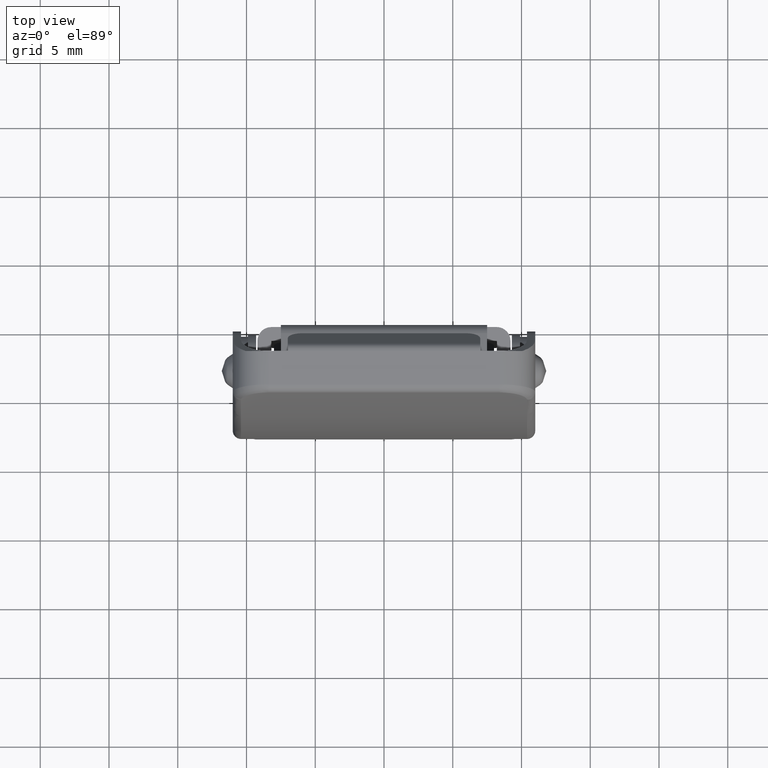
[diagram: clean part render]
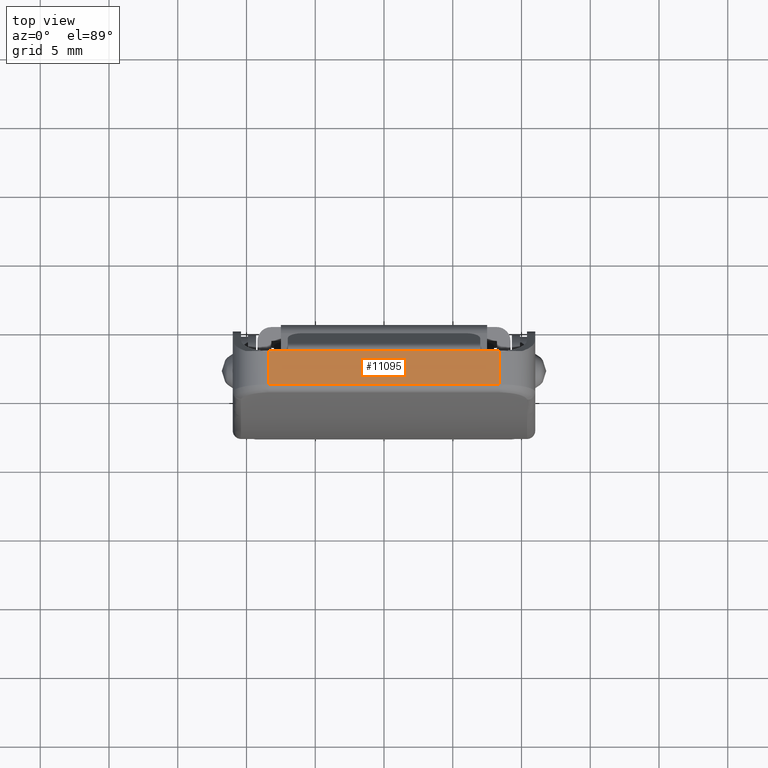
[diagram: same view with one face highlighted and labeled with its STEP entity id]
A machine part, top view. The second image highlights one B-rep face of the part: STEP entity #11095.
In plain terms, the highlighted face is a freeform B-spline surface patch.
Its self-contained STEP definition (entity closure, byte-faithful):
#9861=CARTESIAN_POINT('',(-6.999999999990241,-2.000000000008770,30.800000000018901));
#9862=VERTEX_POINT('',#9861);
#9904=CARTESIAN_POINT('',(7.000000000009671,-2.000000000008770,30.800000000018901));
#9905=VERTEX_POINT('',#9904);
#9942=CARTESIAN_POINT('',(7.000000000009671,-2.000000000008770,30.800000000018901));
#9943=CARTESIAN_POINT('',(-6.999999999990241,-2.000000000008770,30.800000000018901));
#9944=QUASI_UNIFORM_CURVE('',1,(#9942,#9943),.UNSPECIFIED.,.F.,.U.);
#9945=EDGE_CURVE('',#9905,#9862,#9944,.T.);
#10186=CARTESIAN_POINT('',(8.400000000008200,-4.437865323103774,30.800000000017501));
#10187=VERTEX_POINT('',#10186);
#10281=CARTESIAN_POINT('',(-8.399999999991751,-4.437865323103774,30.800000000017501));
#10282=VERTEX_POINT('',#10281);
#10304=CARTESIAN_POINT('',(-8.399999999991751,-4.437865323103774,30.800000000017501));
#10305=CARTESIAN_POINT('',(8.400000000008200,-4.437865323103774,30.800000000017501));
#10306=QUASI_UNIFORM_CURVE('',1,(#10304,#10305),.UNSPECIFIED.,.F.,.U.);
#10307=EDGE_CURVE('',#10282,#10187,#10306,.T.);
#10581=CARTESIAN_POINT('',(-8.399999999991751,-2.000000000008770,30.800000000018901));
#10582=VERTEX_POINT('',#10581);
#10583=CARTESIAN_POINT('',(-8.399999999991751,-2.000000000008770,30.800000000018901));
#10584=CARTESIAN_POINT('',(-8.399999999991751,-4.437865323103774,30.800000000017501));
#10585=QUASI_UNIFORM_CURVE('',1,(#10583,#10584),.UNSPECIFIED.,.F.,.U.);
#10586=EDGE_CURVE('',#10582,#10282,#10585,.T.);
#10633=CARTESIAN_POINT('',(8.400000000008179,-2.000000000008770,30.800000000018901));
#10634=VERTEX_POINT('',#10633);
#10635=CARTESIAN_POINT('',(8.400000000008200,-4.437865323103774,30.800000000017501));
#10636=CARTESIAN_POINT('',(8.400000000008179,-2.000000000008770,30.800000000018901));
#10637=QUASI_UNIFORM_CURVE('',1,(#10635,#10636),.UNSPECIFIED.,.F.,.U.);
#10638=EDGE_CURVE('',#10187,#10634,#10637,.T.);
#11074=CARTESIAN_POINT('',(-9.239159591995929,-4.559636622612509,30.800000000017441));
#11075=CARTESIAN_POINT('',(-9.239159591995929,-1.878228569722749,30.800000000018979));
#11076=CARTESIAN_POINT('',(9.239159141401261,-4.559636622612509,30.800000000017441));
#11077=CARTESIAN_POINT('',(9.239159141401261,-1.878228569722749,30.800000000018979));
#11078=B_SPLINE_SURFACE_WITH_KNOTS('',1,1,((#11074,#11076),(#11075,#11077)),.UNSPECIFIED.,.F.,.F.,.U.,(2,2),(2,2),(0.0,2.681408052889759),(0.0,18.478318733397192),.UNSPECIFIED.);
#11079=ORIENTED_EDGE('',*,*,#10586,.T.);
#11080=ORIENTED_EDGE('',*,*,#10307,.T.);
#11081=ORIENTED_EDGE('',*,*,#10638,.T.);
#11082=CARTESIAN_POINT('',(8.400000000008179,-2.000000000008770,30.800000000018901));
#11083=CARTESIAN_POINT('',(7.000000000009671,-2.000000000008770,30.800000000018901));
#11084=QUASI_UNIFORM_CURVE('',1,(#11082,#11083),.UNSPECIFIED.,.F.,.U.);
#11085=EDGE_CURVE('',#10634,#9905,#11084,.T.);
#11086=ORIENTED_EDGE('',*,*,#11085,.T.);
#11087=ORIENTED_EDGE('',*,*,#9945,.T.);
#11088=CARTESIAN_POINT('',(-6.999999999990241,-2.000000000008770,30.800000000018901));
#11089=CARTESIAN_POINT('',(-8.399999999991751,-2.000000000008770,30.800000000018901));
#11090=QUASI_UNIFORM_CURVE('',1,(#11088,#11089),.UNSPECIFIED.,.F.,.U.);
#11091=EDGE_CURVE('',#9862,#10582,#11090,.T.);
#11092=ORIENTED_EDGE('',*,*,#11091,.T.);
#11093=EDGE_LOOP('',(#11079,#11080,#11081,#11086,#11087,#11092));
#11094=FACE_OUTER_BOUND('',#11093,.T.);
#11095=ADVANCED_FACE('',(#11094),#11078,.F.);